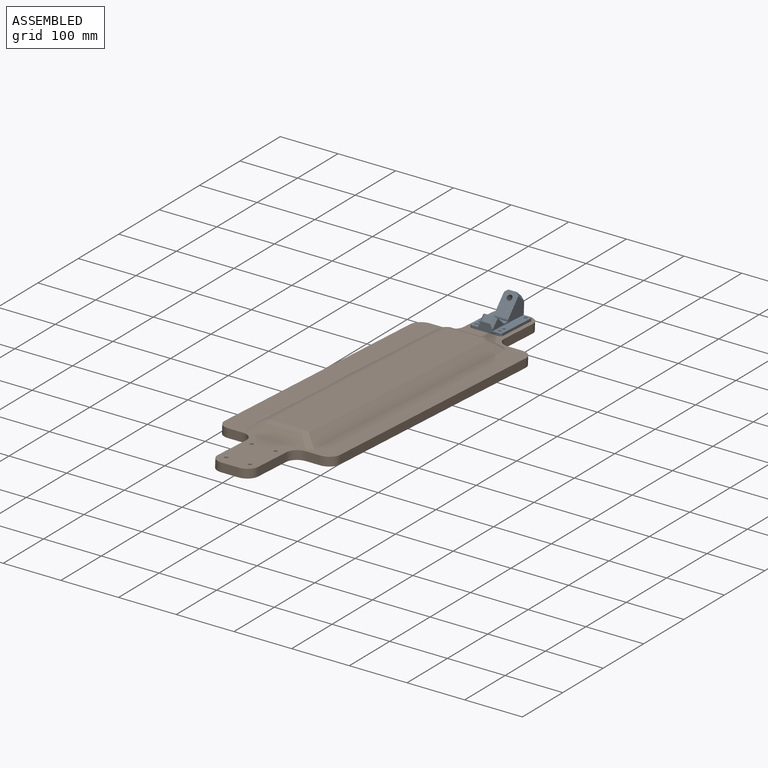
[diagram: assembled view]
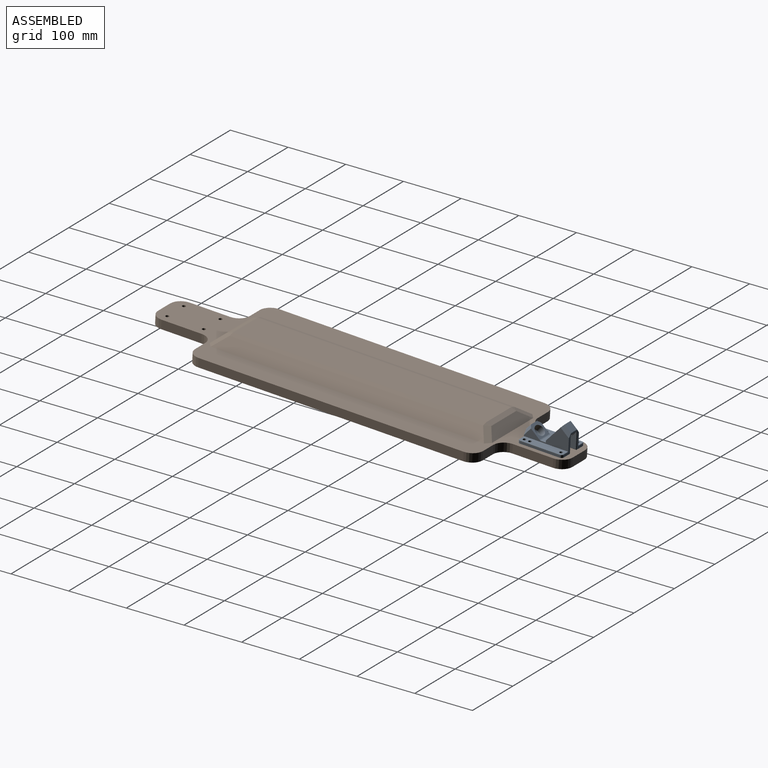
[diagram: assembled view, second angle]
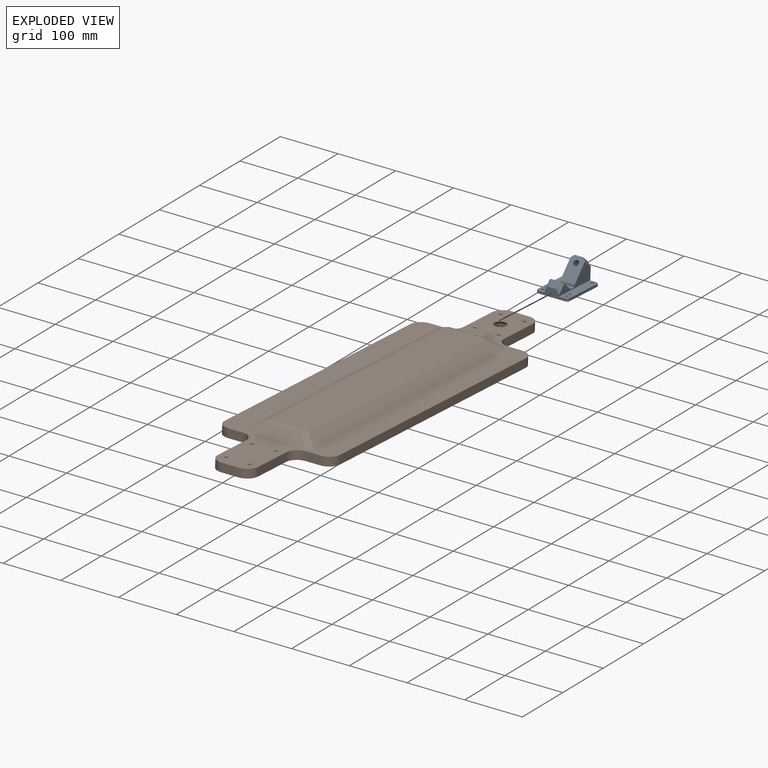
[diagram: exploded view]
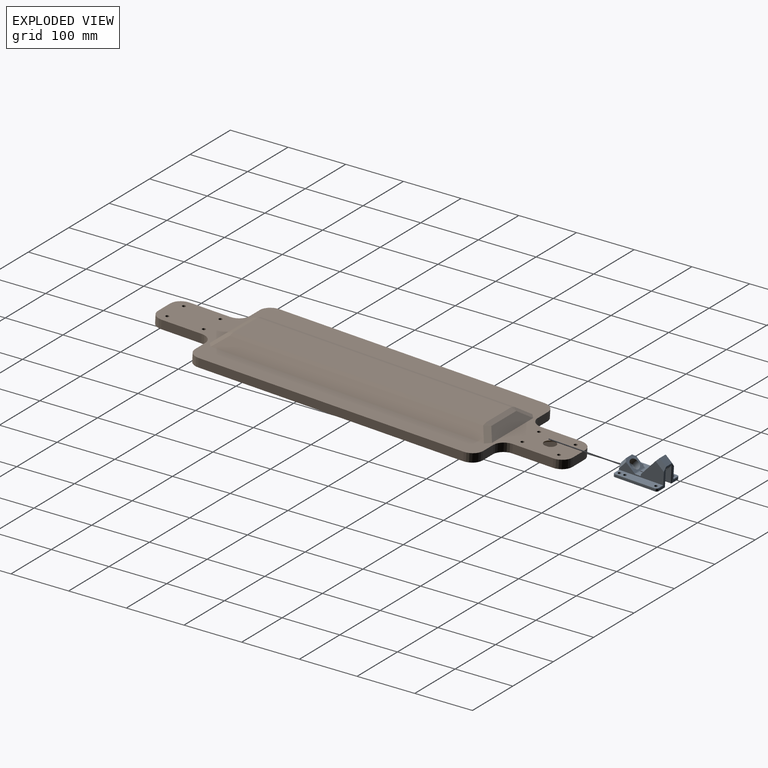
[diagram: exploded view, second angle]
ASSEMBLY  parts=2 mates=2
PART A: 52 faces, bbox 55x77x42.6 mm
  f0: plane 77x55mm, normal (0,0,-1), area 3614.8mm2, adj f5,f6,f25,f26,f27,f28,f29,f30
  f1: plane 76x14.5mm, normal (0,0,1), area 1025.5mm2, adj f7,f30,f31,f32,f47,f48,f49,f50
  f2: plane 76x14.5mm, normal (0,0,1), area 1025.5mm2, adj f3,f27,f28,f29,f42,f43,f44,f45
  f3: plane 77x34.24mm, normal (-1,0,0), area 1147mm2, adj f2,f5,f6,f10,f11,f12,f13,f17
  f4: cylinder r=4.76mm len=19.38mm, axis (0,-0.77,0.64), area 517.7mm2, adj f10,f14
  f5: plane 47x14.72mm, normal (0,-1,0), area 428.1mm2, adj f0,f3,f7,f8,f19,f20,f34,f36
  f6: plane 47x32.67mm, normal (0,1,0), area 407.6mm2, adj f0,f3,f7,f9,f14,f17,f18,f33
  f7: plane 77x34.24mm, normal (1,0,0), area 1147mm2, adj f1,f5,f6,f10,f11,f12,f13,f18
  f8: plane 15x9.24mm, normal (0,-0.77,0.64), area 181mm2, adj f5,f13,f19,f20
  f9: plane 15x11.8mm, normal (0,0.64,0.77), area 231.1mm2, adj f6,f10,f17,f18
  f10: plane 31.48x26.41mm, normal (0,-0.77,0.64), area 931mm2, adj f3,f4,f7,f9,f17,f18,f21
  f11: plane 25x1.54mm, normal (0,-1,0), area 38.6mm2, adj f3,f7,f12,f21
  f12: plane 25x8.4mm, normal (0,0,1), area 210mm2, adj f3,f7,f11,f22
  f13: plane 25x19.12mm, normal (0,0.64,0.77), area 344.6mm2, adj f3,f7,f8,f19,f20,f22,f24
  f14: plane 29.34x24.62mm, normal (0,0.77,-0.64), area 503.6mm2, adj f4,f6,f15,f16,f37,f38,f39,f40
  f15: plane 28.62x24.02mm, normal (-1,0,0), area 343.8mm2, adj f14,f37,f38
  f16: plane 28.62x24.02mm, normal (1,0,0), area 343.8mm2, adj f14,f40,f41
  f17: plane 16.43x15.02mm, normal (-0.71,0.45,0.54), area 123.8mm2, adj f3,f6,f9,f10
  f18: plane 16.43x15.02mm, normal (0.71,0.45,0.54), area 123.8mm2, adj f6,f7,f9,f10
  f19: plane 17.02x11.58mm, normal (-0.71,-0.54,0.45), area 106.4mm2, adj f3,f5,f8,f13
  f20: plane 17.02x11.58mm, normal (0.71,-0.54,0.45), area 106.4mm2, adj f5,f7,f8,f13
  f21: cylinder r=4mm len=25mm, axis (1,0,0), area 69.8mm2, adj f3,f7,f10,f11
  f22: cylinder r=4mm len=25mm, axis (1,0,0), area 69.8mm2, adj f3,f7,f12,f13
  f23: cone r=9mm half-angle=59deg, axis (0,0.64,0.77), area 296.9mm2, adj f24
  f24: cylinder r=9mm len=21.5mm, axis (0,0.64,0.77), area 678.6mm2, adj f13,f23
  f25: plane 69x4.5mm, normal (-1,0,0), area 310.5mm2, adj f0,f35,f36,f44
  f26: plane 69x4.5mm, normal (1,0,0), area 310.5mm2, adj f0,f33,f34,f49
  f27: cylinder r=2.75mm len=5.5mm, axis (0,0,-1), area 86.4mm2, adj f0,f2
  f28: cylinder r=2.75mm len=5.5mm, axis (0,0,-1), area 86.4mm2, adj f0,f2
  f29: cylinder r=2.75mm len=5.5mm, axis (0,0,-1), area 86.4mm2, adj f0,f2
  f30: cylinder r=2.75mm len=5.5mm, axis (0,0,-1), area 86.4mm2, adj f0,f1
  f31: cylinder r=2.75mm len=5.5mm, axis (0,0,-1), area 86.4mm2, adj f0,f1
  f32: cylinder r=2.75mm len=5.5mm, axis (0,0,-1), area 86.4mm2, adj f0,f1
  f33: cylinder r=4mm len=4.5mm, axis (0,0,1), area 28.3mm2, adj f0,f6,f26,f50
  f34: cylinder r=4mm len=4.5mm, axis (0,0,1), area 28.3mm2, adj f0,f5,f26,f48
  f35: cylinder r=4mm len=4.5mm, axis (0,0,1), area 28.3mm2, adj f0,f6,f25,f45
  f36: cylinder r=4mm len=4.5mm, axis (0,0,1), area 28.3mm2, adj f0,f5,f25,f43
  f37: plane 29.72x0.5mm, normal (-0.71,0.71,0), area 20.6mm2, adj f6,f14,f15,f38
  f38: plane 28.99x0.5mm, normal (-0.71,0,-0.71), area 18.4mm2, adj f0,f14,f15,f37,f39
  f39: plane 16x4.38mm, normal (0,0.09,-1), area 68.6mm2, adj f0,f14,f38,f40
  f40: plane 28.99x0.5mm, normal (0.71,0,-0.71), area 18.4mm2, adj f0,f14,f16,f39,f41
  f41: plane 29.72x0.5mm, normal (0.71,0.71,0), area 20.6mm2, adj f6,f14,f16,f40
  f42: plane 11x0.5mm, normal (0,-0.71,0.71), area 7.8mm2, adj f2,f3,f5,f43
  f43: cone r=3.5mm half-angle=45deg, axis (0,0,-1), area 4.2mm2, adj f2,f36,f42,f44
  f44: plane 69x0.5mm, normal (-0.71,0,0.71), area 48.8mm2, adj f2,f25,f43,f45
  f45: cone r=3.5mm half-angle=45deg, axis (0,0,-1), area 4.2mm2, adj f2,f35,f44,f46
  f46: plane 11x0.5mm, normal (0,0.71,0.71), area 7.8mm2, adj f2,f3,f6,f45
  f47: plane 11x0.5mm, normal (0,-0.71,0.71), area 7.8mm2, adj f1,f5,f7,f48
  f48: cone r=3.5mm half-angle=45deg, axis (0,0,-1), area 4.2mm2, adj f1,f34,f47,f49
  f49: plane 69x0.5mm, normal (0.71,0,0.71), area 48.8mm2, adj f1,f26,f48,f50
  f50: cone r=3.5mm half-angle=45deg, axis (0,0,-1), area 4.2mm2, adj f1,f33,f49,f51
  f51: plane 11x0.5mm, normal (0,0.71,0.71), area 7.8mm2, adj f1,f6,f7,f50
PART B: 233 faces, bbox 720x200x32 mm
  f0: plane 12.5x6.71mm, normal (0,0,1), area 24.9mm2, adj f21,f62,f199
  f1: plane 12.5x6.71mm, normal (0,0,1), area 24.9mm2, adj f22,f62,f199
  f2: plane 450x10.76mm, normal (0,-1,0), area 4349.5mm2, adj f20,f60,f63,f70,f74,f81,f83,f84
  f3: plane 450x10.76mm, normal (0,1,0), area 4349.5mm2, adj f20,f60,f64,f70,f74,f81,f97,f98
  f4: plane 720x200mm, normal (0,0,1), area 94430.8mm2, adj f36,f37,f38,f39,f40,f41,f42,f43
  f5: plane 720x200mm, normal (0,0,-1), area 55839.4mm2, adj f25,f26,f36,f37,f38,f39,f40,f41
  f6: cylinder r=2.75mm len=5.5mm, axis (0,0,1), area 34.6mm2, adj f81,f152
  f7: cylinder r=2.75mm len=5.5mm, axis (0,0,1), area 34.6mm2, adj f81,f146
  f8: cylinder r=2.75mm len=5.5mm, axis (0,0,1), area 34.6mm2, adj f81,f141
  f9: cylinder r=2.75mm len=5.5mm, axis (0,0,1), area 34.6mm2, adj f81,f136
  f10: cylinder r=2.75mm len=5.5mm, axis (0,0,1), area 34.6mm2, adj f81,f129
  f11: cylinder r=2.75mm len=5.5mm, axis (0,0,1), area 34.6mm2, adj f81,f123
  f12: cylinder r=2.75mm len=5.5mm, axis (0,0,1), area 34.6mm2, adj f81,f118
  f13: cylinder r=2.75mm len=5.5mm, axis (0,0,1), area 34.6mm2, adj f81,f113
  f14: cylinder r=2.75mm len=5.5mm, axis (0,0,1), area 34.6mm2, adj f74,f109
  f15: cylinder r=2.75mm len=5.5mm, axis (0,0,1), area 34.6mm2, adj f74,f104
  f16: cylinder r=2.75mm len=5.5mm, axis (0,0,1), area 34.6mm2, adj f74,f99
  f17: cylinder r=2.75mm len=5.5mm, axis (0,0,1), area 34.6mm2, adj f74,f93
  f18: cylinder r=2.75mm len=5.5mm, axis (0,0,1), area 34.6mm2, adj f74,f88
  f19: cylinder r=2.75mm len=5.5mm, axis (0,0,1), area 34.6mm2, adj f74,f83
  f20: plane 70.08x27mm, normal (-1,0,0), area 1239.5mm2, adj f2,f3,f27,f28,f29,f30,f31,f32
  f21: plane 95x11mm, normal (0,-1,0), area 828.4mm2, adj f0,f23,f61,f62,f73,f74,f199,f202
  f22: plane 95x11mm, normal (0,1,0), area 828.4mm2, adj f1,f23,f61,f62,f73,f74,f199,f200
  f23: plane 90x25mm, normal (0,0,-1), area 2250mm2, adj f21,f22,f62,f73
  f24: plane 440x61.63mm, normal (0,0,-1), area 27115.7mm2, adj f204,f209,f210,f214
  f25: plane 474.46x21.54mm, normal (0,-0.56,-0.83), area 11908.9mm2, adj f5,f205,f210,f211
  f26: plane 474.46x21.54mm, normal (0,0.56,-0.83), area 11908.9mm2, adj f5,f203,f208,f209
  f27: plane 450x60mm, normal (0,0,1), area 27000mm2, adj f20,f30,f33,f60
  f28: plane 450x3.02mm, normal (0,0,-1), area 1358.5mm2, adj f20,f60,f64,f65
  f29: plane 450x2.76mm, normal (0,0,-1), area 1240.8mm2, adj f20,f60,f63,f66
  f30: plane 450x6.53mm, normal (0,1,0), area 2939.9mm2, adj f20,f27,f35,f60
  f31: plane 450x5.59mm, normal (0,0.75,0.66), area 3341.1mm2, adj f20,f35,f60,f65
  f32: plane 450x4.51mm, normal (0,-0.71,0.71), area 2873.1mm2, adj f20,f34,f60,f66
  f33: plane 450x7.49mm, normal (0,-1,0), area 3368.4mm2, adj f20,f27,f34,f60
  f34: plane 450x0.88mm, normal (0,-0.92,0.38), area 428mm2, adj f20,f32,f33,f60
  f35: plane 450x0.82mm, normal (0,0.94,0.35), area 393.4mm2, adj f20,f30,f31,f60
  f36: plane 25x15mm, normal (-1,0,0), area 375mm2, adj f4,f5,f37,f59
  f37: cylinder r=20mm len=20mm, axis (0,0,-1), area 471.2mm2, adj f4,f5,f36,f38
  f38: plane 460x15mm, normal (0,-1,0), area 6900mm2, adj f4,f5,f37,f39
  f39: cylinder r=20mm len=20mm, axis (0,0,-1), area 471.2mm2, adj f4,f5,f38,f40
  f40: plane 25x15mm, normal (1,0,0), area 375mm2, adj f4,f5,f39,f41
  f41: cylinder r=20mm len=20mm, axis (0,0,-1), area 471.2mm2, adj f4,f5,f40,f42
  f42: plane 70x15mm, normal (0,-1,0), area 1050mm2, adj f4,f5,f41,f43
  f43: cylinder r=20mm len=20mm, axis (0,0,-1), area 471.2mm2, adj f4,f5,f42,f44
  f44: plane 30x15mm, normal (1,0,0), area 450mm2, adj f4,f5,f43,f45
  f45: cylinder r=20mm len=20mm, axis (0,0,-1), area 471.2mm2, adj f4,f5,f44,f46
  f46: plane 70x15mm, normal (0,1,0), area 1050mm2, adj f4,f5,f45,f47
  f47: cylinder r=20mm len=20mm, axis (0,0,-1), area 471.2mm2, adj f4,f5,f46,f48
  f48: plane 25x15mm, normal (1,0,0), area 375mm2, adj f4,f5,f47,f49
  f49: cylinder r=20mm len=20mm, axis (0,0,-1), area 471.2mm2, adj f4,f5,f48,f50
  f50: plane 460x15mm, normal (0,1,0), area 6900mm2, adj f4,f5,f49,f51
  f51: cylinder r=20mm len=20mm, axis (0,0,-1), area 471.2mm2, adj f4,f5,f50,f52
  f52: plane 25x15mm, normal (-1,0,0), area 375mm2, adj f4,f5,f51,f53
  f53: cylinder r=20mm len=20mm, axis (0,0,-1), area 471.2mm2, adj f4,f5,f52,f54
  f54: plane 70x15mm, normal (0,1,0), area 1050mm2, adj f4,f5,f53,f55
  f55: cylinder r=20mm len=20mm, axis (0,0,-1), area 471.2mm2, adj f4,f5,f54,f56
  f56: plane 30x15mm, normal (-1,0,0), area 450mm2, adj f4,f5,f55,f57
  f57: cylinder r=20mm len=20mm, axis (0,0,-1), area 471.2mm2, adj f4,f5,f56,f58
  f58: plane 70x15mm, normal (0,-1,0), area 1050mm2, adj f4,f5,f57,f59
  f59: cylinder r=20mm len=20mm, axis (0,0,-1), area 471.2mm2, adj f4,f5,f36,f58
  f60: plane 70.08x27mm, normal (1,0,0), area 1668.2mm2, adj f2,f3,f27,f28,f29,f30,f31,f32
  f61: plane 71.71x25mm, normal (0,0,1), area 1674.7mm2, adj f21,f22,f199,f201
  f62: plane 25x8.5mm, normal (-1,0,0), area 212.5mm2, adj f0,f1,f21,f22,f23
  f63: plane 450x1.24mm, normal (0,-0.71,-0.71), area 790.8mm2, adj f2,f20,f29,f60
  f64: plane 450x1.24mm, normal (0,0.71,-0.71), area 790.8mm2, adj f3,f20,f28,f60
  f65: plane 450x2.06mm, normal (0,0.91,-0.41), area 1018.4mm2, adj f20,f28,f31,f60
  f66: plane 450x2.12mm, normal (0,-0.92,-0.38), area 1033.2mm2, adj f20,f29,f32,f60
  f67: plane 102.1x16.19mm, normal (-0.65,0,-0.76), area 1739.5mm2, adj f5,f203,f204,f205
  f68: plane 102.1x16.19mm, normal (0.65,0,-0.76), area 1739.5mm2, adj f5,f208,f211,f214
  f69: plane 80x3mm, normal (1,0,0), area 240mm2, adj f4,f70,f79,f80,f81
  f70: plane 150x60mm, normal (0,0,-1), area 9000mm2, adj f2,f3,f60,f69
  f71: plane 80x3mm, normal (1,0,0), area 240mm2, adj f4,f74,f75,f78
  f72: plane 80x3mm, normal (-1,0,0), area 240mm2, adj f4,f79,f80,f81
  f73: plane 60x3mm, normal (-1,0,0), area 148.7mm2, adj f4,f21,f22,f23,f74,f76,f77
  f74: plane 86.84x80mm, normal (0,0,1), area 2119.2mm2, adj f2,f3,f14,f15,f16,f17,f18,f19
  f75: plane 76.84x3mm, normal (0,1,0), area 230.5mm2, adj f4,f71,f74,f76
  f76: plane 10x10mm, normal (-0.71,0.71,0), area 42.4mm2, adj f4,f73,f74,f75
  f77: plane 10x10mm, normal (-0.71,-0.71,0), area 42.4mm2, adj f4,f73,f74,f78
  f78: plane 76.84x3mm, normal (0,-1,0), area 230.5mm2, adj f4,f71,f74,f77
  f79: plane 162.73x3mm, normal (0,-1,0), area 488.2mm2, adj f4,f69,f72,f81
  f80: plane 162.73x3mm, normal (0,1,0), area 488.2mm2, adj f4,f69,f72,f81
  f81: plane 162.73x80mm, normal (0,0,1), area 3364.5mm2, adj f2,f3,f6,f7,f8,f9,f10,f11
  f82: plane 8x5mm, normal (0,-1,0), area 40mm2, adj f83,f84,f85,f86
  f83: plane 15x8mm, normal (0,0,-1), area 96.2mm2, adj f2,f19,f82,f85,f86
  f84: plane 15x8mm, normal (0,0,1), area 96.2mm2, adj f2,f82,f85,f86,f157
  f85: plane 15x5mm, normal (-1,0,0), area 75mm2, adj f2,f82,f83,f84
  f86: plane 15x5mm, normal (1,0,0), area 75mm2, adj f2,f82,f83,f84
  f87: plane 8x5mm, normal (0,-1,0), area 40mm2, adj f88,f89,f90,f91
  f88: plane 15x8mm, normal (0,0,-1), area 96.2mm2, adj f2,f18,f87,f90,f91
  f89: plane 15x8mm, normal (0,0,1), area 96.2mm2, adj f2,f87,f90,f91,f159
  f90: plane 15x5mm, normal (-1,0,0), area 75mm2, adj f2,f87,f88,f89
  f91: plane 15x5mm, normal (1,0,0), area 75mm2, adj f2,f87,f88,f89
  f92: plane 8x5mm, normal (0,-1,0), area 40mm2, adj f93,f94,f95,f96
  f93: plane 15x8mm, normal (0,0,-1), area 96.2mm2, adj f2,f17,f92,f95,f96
  f94: plane 15x8mm, normal (0,0,1), area 96.2mm2, adj f2,f92,f95,f96,f161
  f95: plane 15x5mm, normal (-1,0,0), area 75mm2, adj f2,f92,f93,f94
  f96: plane 15x5mm, normal (1,0,0), area 75mm2, adj f2,f92,f93,f94
  f97: plane 15x5mm, normal (1,0,0), area 75mm2, adj f3,f99,f100,f101
  f98: plane 15x5mm, normal (-1,0,0), area 75mm2, adj f3,f99,f100,f101
  f99: plane 15x8mm, normal (0,0,-1), area 96.2mm2, adj f3,f16,f97,f98,f101
  f100: plane 15x8mm, normal (0,0,1), area 96.2mm2, adj f3,f97,f98,f101,f163
  f101: plane 8x5mm, normal (0,1,0), area 40mm2, adj f97,f98,f99,f100
  f102: plane 15x5mm, normal (1,0,0), area 75mm2, adj f3,f104,f105,f106
  f103: plane 15x5mm, normal (-1,0,0), area 75mm2, adj f3,f104,f105,f106
  f104: plane 15x8mm, normal (0,0,-1), area 96.2mm2, adj f3,f15,f102,f103,f106
  f105: plane 15x8mm, normal (0,0,1), area 96.2mm2, adj f3,f102,f103,f106,f165
  f106: plane 8x5mm, normal (0,1,0), area 40mm2, adj f102,f103,f104,f105
  f107: plane 15x5mm, normal (1,0,0), area 75mm2, adj f3,f109,f110,f111
  f108: plane 15x5mm, normal (-1,0,0), area 75mm2, adj f3,f109,f110,f111
  f109: plane 15x8mm, normal (0,0,-1), area 96.2mm2, adj f3,f14,f107,f108,f111
  f110: plane 15x8mm, normal (0,0,1), area 96.2mm2, adj f3,f107,f108,f111,f167
  f111: plane 8x5mm, normal (0,1,0), area 40mm2, adj f107,f108,f109,f110
  f112: plane 8x5mm, normal (0,-1,0), area 40mm2, adj f113,f114,f115,f116
  f113: plane 15x8mm, normal (0,0,-1), area 96.2mm2, adj f2,f13,f112,f115,f116
  f114: plane 15x8mm, normal (0,0,1), area 96.2mm2, adj f2,f112,f115,f116,f169
  f115: plane 15x5mm, normal (-1,0,0), area 75mm2, adj f2,f112,f113,f114
  f116: plane 15x5mm, normal (1,0,0), area 75mm2, adj f2,f112,f113,f114
  f117: plane 8x5mm, normal (0,-1,0), area 40mm2, adj f118,f119,f120,f121
  f118: plane 15x8mm, normal (0,0,-1), area 96.2mm2, adj f2,f12,f117,f120,f121
  f119: plane 15x8mm, normal (0,0,1), area 96.2mm2, adj f2,f117,f120,f121,f171
  f120: plane 15x5mm, normal (-1,0,0), area 75mm2, adj f2,f117,f118,f119
  f121: plane 15x5mm, normal (1,0,0), area 75mm2, adj f2,f117,f118,f119
  f122: plane 8x5mm, normal (0,-1,0), area 40mm2, adj f123,f124,f125,f126
  f123: plane 15x8mm, normal (0,0,-1), area 96.2mm2, adj f2,f11,f122,f125,f126
  f124: plane 15x8mm, normal (0,0,1), area 96.2mm2, adj f2,f122,f125,f126,f173
  f125: plane 15x5mm, normal (-1,0,0), area 75mm2, adj f2,f122,f123,f124
  f126: plane 15x5mm, normal (1,0,0), area 75mm2, adj f2,f122,f123,f124
  f127: plane 8x5mm, normal (0,-1,0), area 40mm2, adj f128,f129,f130,f131
  f128: plane 15x8mm, normal (0,0,1), area 96.2mm2, adj f2,f127,f130,f131,f133
  f129: plane 15x8mm, normal (0,0,-1), area 96.2mm2, adj f2,f10,f127,f130,f131
  f130: plane 15x5mm, normal (-1,0,0), area 75mm2, adj f2,f127,f128,f129
  f131: plane 15x5mm, normal (1,0,0), area 75mm2, adj f2,f127,f128,f129
  f132: plane 5.5x5.5mm, normal (0,0,1), area 23.8mm2, adj f133
  f133: cylinder r=2.75mm len=5.5mm, axis (0,0,1), area 51.8mm2, adj f128,f132
  f134: plane 15x5mm, normal (1,0,0), area 75mm2, adj f3,f136,f137,f138
  f135: plane 15x5mm, normal (-1,0,0), area 75mm2, adj f3,f136,f137,f138
  f136: plane 15x8mm, normal (0,0,-1), area 96.2mm2, adj f3,f9,f134,f135,f138
  f137: plane 15x8mm, normal (0,0,1), area 96.2mm2, adj f3,f134,f135,f138,f175
  f138: plane 8x5mm, normal (0,1,0), area 40mm2, adj f134,f135,f136,f137
  f139: plane 15x5mm, normal (1,0,0), area 75mm2, adj f3,f141,f142,f143
  f140: plane 15x5mm, normal (-1,0,0), area 75mm2, adj f3,f141,f142,f143
  f141: plane 15x8mm, normal (0,0,-1), area 96.2mm2, adj f3,f8,f139,f140,f143
  f142: plane 15x8mm, normal (0,0,1), area 96.2mm2, adj f3,f139,f140,f143,f177
  f143: plane 8x5mm, normal (0,1,0), area 40mm2, adj f139,f140,f141,f142
  f144: plane 15x5mm, normal (1,0,0), area 75mm2, adj f3,f146,f147,f148
  f145: plane 15x5mm, normal (-1,0,0), area 75mm2, adj f3,f146,f147,f148
  f146: plane 15x8mm, normal (0,0,-1), area 96.2mm2, adj f3,f7,f144,f145,f148
  f147: plane 15x8mm, normal (0,0,1), area 96.2mm2, adj f3,f144,f145,f148,f179
  f148: plane 8x5mm, normal (0,1,0), area 40mm2, adj f144,f145,f146,f147
  f149: plane 15x5mm, normal (1,0,0), area 75mm2, adj f3,f151,f152,f153
  f150: plane 15x5mm, normal (-1,0,0), area 75mm2, adj f3,f151,f152,f153
  f151: plane 15x8mm, normal (0,0,1), area 96.2mm2, adj f3,f149,f150,f153,f155
  f152: plane 15x8mm, normal (0,0,-1), area 96.2mm2, adj f3,f6,f149,f150,f153
  f153: plane 8x5mm, normal (0,1,0), area 40mm2, adj f149,f150,f151,f152
  f154: plane 5.5x5.5mm, normal (0,0,1), area 23.8mm2, adj f155
  f155: cylinder r=2.75mm len=5.5mm, axis (0,0,1), area 51.8mm2, adj f151,f154
  f156: plane 5.5x5.5mm, normal (0,0,1), area 23.8mm2, adj f157
  f157: cylinder r=2.75mm len=5.5mm, axis (0,0,1), area 51.8mm2, adj f84,f156
  f158: plane 5.5x5.5mm, normal (0,0,1), area 23.8mm2, adj f159
  f159: cylinder r=2.75mm len=5.5mm, axis (0,0,1), area 51.8mm2, adj f89,f158
  f160: plane 5.5x5.5mm, normal (0,0,1), area 23.8mm2, adj f161
  f161: cylinder r=2.75mm len=5.5mm, axis (0,0,1), area 51.8mm2, adj f94,f160
  f162: plane 5.5x5.5mm, normal (0,0,1), area 23.8mm2, adj f163
  f163: cylinder r=2.75mm len=5.5mm, axis (0,0,1), area 51.8mm2, adj f100,f162
  f164: plane 5.5x5.5mm, normal (0,0,1), area 23.8mm2, adj f165
  f165: cylinder r=2.75mm len=5.5mm, axis (0,0,1), area 51.8mm2, adj f105,f164
  f166: plane 5.5x5.5mm, normal (0,0,1), area 23.8mm2, adj f167
  f167: cylinder r=2.75mm len=5.5mm, axis (0,0,1), area 51.8mm2, adj f110,f166
  f168: plane 5.5x5.5mm, normal (0,0,1), area 23.8mm2, adj f169
  f169: cylinder r=2.75mm len=5.5mm, axis (0,0,1), area 51.8mm2, adj f114,f168
  f170: plane 5.5x5.5mm, normal (0,0,1), area 23.8mm2, adj f171
  f171: cylinder r=2.75mm len=5.5mm, axis (0,0,1), area 51.8mm2, adj f119,f170
  f172: plane 5.5x5.5mm, normal (0,0,1), area 23.8mm2, adj f173
  f173: cylinder r=2.75mm len=5.5mm, axis (0,0,1), area 51.8mm2, adj f124,f172
  f174: plane 5.5x5.5mm, normal (0,0,1), area 23.8mm2, adj f175
  f175: cylinder r=2.75mm len=5.5mm, axis (0,0,1), area 51.8mm2, adj f137,f174
  f176: plane 5.5x5.5mm, normal (0,0,1), area 23.8mm2, adj f177
  f177: cylinder r=2.75mm len=5.5mm, axis (0,0,1), area 51.8mm2, adj f142,f176
  f178: plane 5.5x5.5mm, normal (0,0,1), area 23.8mm2, adj f179
  f179: cylinder r=2.75mm len=5.5mm, axis (0,0,1), area 51.8mm2, adj f147,f178
  f180: cylinder r=3mm len=12.5mm, axis (0,0,1), area 235.6mm2, adj f5,f193
  f181: cylinder r=3mm len=12.5mm, axis (0,0,1), area 235.6mm2, adj f5,f189
  f182: cylinder r=3mm len=12.5mm, axis (0,0,1), area 235.6mm2, adj f5,f191
  f183: cylinder r=3mm len=12.5mm, axis (0,0,1), area 235.6mm2, adj f5,f190
  f184: cylinder r=3mm len=12.5mm, axis (0,0,1), area 235.6mm2, adj f5,f195
  f185: cylinder r=3mm len=12.5mm, axis (0,0,1), area 235.6mm2, adj f5,f194
  f186: cylinder r=3mm len=12.5mm, axis (0,0,1), area 235.6mm2, adj f5,f192
  f187: cylinder r=3mm len=12.5mm, axis (0,0,1), area 235.6mm2, adj f5,f188
  f188: cone r=5.5mm half-angle=45deg, axis (0,0,1), area 94.4mm2, adj f4,f187
  f189: cone r=5.5mm half-angle=45deg, axis (0,0,1), area 94.4mm2, adj f4,f181
  f190: cone r=5.5mm half-angle=45deg, axis (0,0,1), area 94.4mm2, adj f4,f183
  f191: cone r=5.5mm half-angle=45deg, axis (0,0,1), area 94.4mm2, adj f4,f182
  f192: cone r=3mm half-angle=45deg, axis (0,0,1), area 94.4mm2, adj f4,f186
  f193: cone r=3mm half-angle=45deg, axis (0,0,1), area 94.4mm2, adj f4,f180
  f194: cone r=3mm half-angle=45deg, axis (0,0,1), area 94.4mm2, adj f4,f185
  f195: cone r=3mm half-angle=45deg, axis (0,0,1), area 94.4mm2, adj f4,f184
  f196: plane 60x3mm, normal (-1,0,0), area 180mm2, adj f2,f3,f81,f198
  f197: plane 60x3mm, normal (1,0,0), area 180mm2, adj f2,f3,f74,f198
  f198: plane 70.43x60mm, normal (0,0,-1), area 4225.8mm2, adj f2,f3,f196,f197
  f199: cone r=15mm half-angle=45deg, axis (0,0,1), area 453.3mm2, adj f0,f1,f5,f21,f22,f61
  f200: plane 12.25x5mm, normal (-0.71,0.71,0), area 68.9mm2, adj f20,f22,f74,f201
  f201: plane 35x5mm, normal (-0.71,0,0.71), area 212.1mm2, adj f20,f61,f200,f202
  f202: plane 12.25x5mm, normal (-0.71,-0.71,0), area 68.9mm2, adj f20,f21,f74,f201
  f203: plane 29.19x25mm, normal (-0.36,0.31,-0.88), area 354.4mm2, adj f5,f26,f67,f206
  f204: plane 61.63x8.81mm, normal (-0.35,0,-0.94), area 578.4mm2, adj f24,f67,f206,f207
  f205: plane 29.19x25mm, normal (-0.36,-0.31,-0.88), area 354.4mm2, adj f5,f25,f67,f207
  f206: plane 8.81x7.65mm, normal (-0.33,0.28,-0.9), area 37.4mm2, adj f203,f204,f209
  f207: plane 8.81x7.65mm, normal (-0.33,-0.28,-0.9), area 37.4mm2, adj f204,f205,f210
  f208: plane 29.19x25mm, normal (0.36,0.31,-0.88), area 354.4mm2, adj f5,f26,f68,f212
  f209: plane 440x7.65mm, normal (0,0.29,-0.96), area 3521.3mm2, adj f24,f26,f206,f212
  f210: plane 440x7.65mm, normal (0,-0.29,-0.96), area 3521.3mm2, adj f24,f25,f207,f213
  f211: plane 29.19x25mm, normal (0.36,-0.31,-0.88), area 354.4mm2, adj f5,f25,f68,f213
  f212: plane 8.81x7.65mm, normal (0.33,0.28,-0.9), area 37.4mm2, adj f208,f209,f214
  f213: plane 8.81x7.65mm, normal (0.33,-0.28,-0.9), area 37.4mm2, adj f210,f211,f214
  f214: plane 61.63x8.81mm, normal (0.35,0,-0.94), area 578.4mm2, adj f24,f68,f212,f213
  f215: cylinder r=1.75mm len=285mm, axis (1,0,0), area 3133.7mm2, adj f216,f217
  f216: plane 3.5x3.5mm, normal (-1,0,0), area 9.6mm2, adj f215
  f217: plane 3.5x3.5mm, normal (1,0,0), area 9.6mm2, adj f215
  f218: cylinder r=1.75mm len=285mm, axis (1,0,0), area 3133.7mm2, adj f219,f220
  f219: plane 3.5x3.5mm, normal (-1,0,0), area 9.6mm2, adj f218
  f220: plane 3.5x3.5mm, normal (1,0,0), area 9.6mm2, adj f218
  f221: cylinder r=1.75mm len=285mm, axis (1,0,0), area 3133.7mm2, adj f222,f223
  f222: plane 3.5x3.5mm, normal (-1,0,0), area 9.6mm2, adj f221
  f223: plane 3.5x3.5mm, normal (1,0,0), area 9.6mm2, adj f221
  f224: cylinder r=1.75mm len=285mm, axis (1,0,0), area 3133.7mm2, adj f225,f226
  f225: plane 3.5x3.5mm, normal (-1,0,0), area 9.6mm2, adj f224
  f226: plane 3.5x3.5mm, normal (1,0,0), area 9.6mm2, adj f224
  f227: cylinder r=1.75mm len=285mm, axis (1,0,0), area 3133.7mm2, adj f228,f229
  f228: plane 3.5x3.5mm, normal (-1,0,0), area 9.6mm2, adj f227
  f229: plane 3.5x3.5mm, normal (1,0,0), area 9.6mm2, adj f227
  f230: cylinder r=1.75mm len=285mm, axis (1,0,0), area 3133.7mm2, adj f231,f232
  f231: plane 3.5x3.5mm, normal (-1,0,0), area 9.6mm2, adj f230
  f232: plane 3.5x3.5mm, normal (1,0,0), area 9.6mm2, adj f230
PLACE A rot(axis=(-1,0,0),3deg) t=(-246.74,1113.26,82.32)mm
PLACE B rot(axis=(0.71,0.71,-0.02),177.9deg) t=(-246.74,802.21,98.9)mm
MATE parallel A.f6 <-> B.f44  axis (0,1,-0.05) through (-246.74,1152.43,94.06)mm
MATE parallel A.f0 <-> B.f28  axis (0,-0.05,-1) through (-246.74,1110.49,82.74)mm
